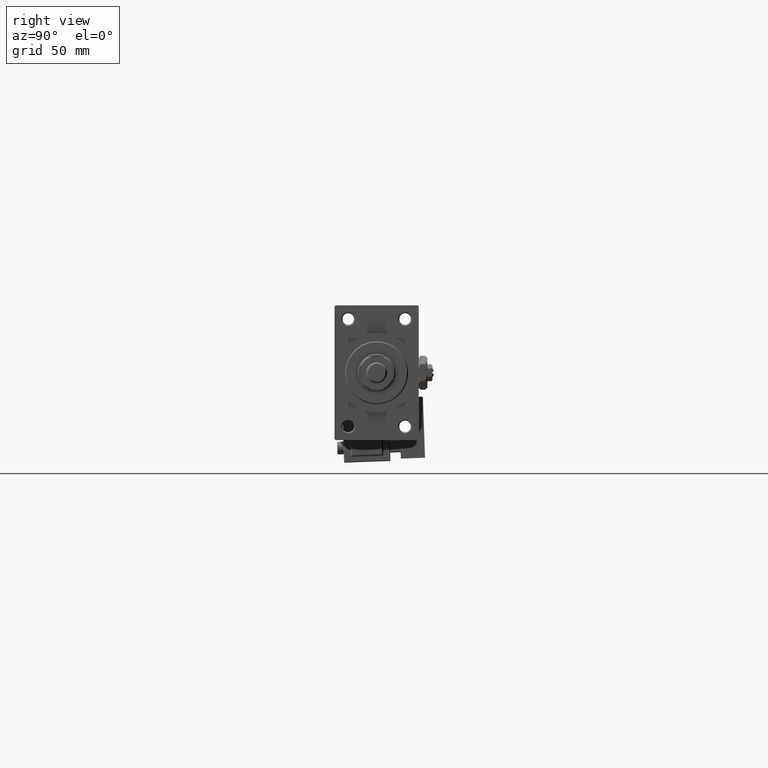
[diagram: clean part render]
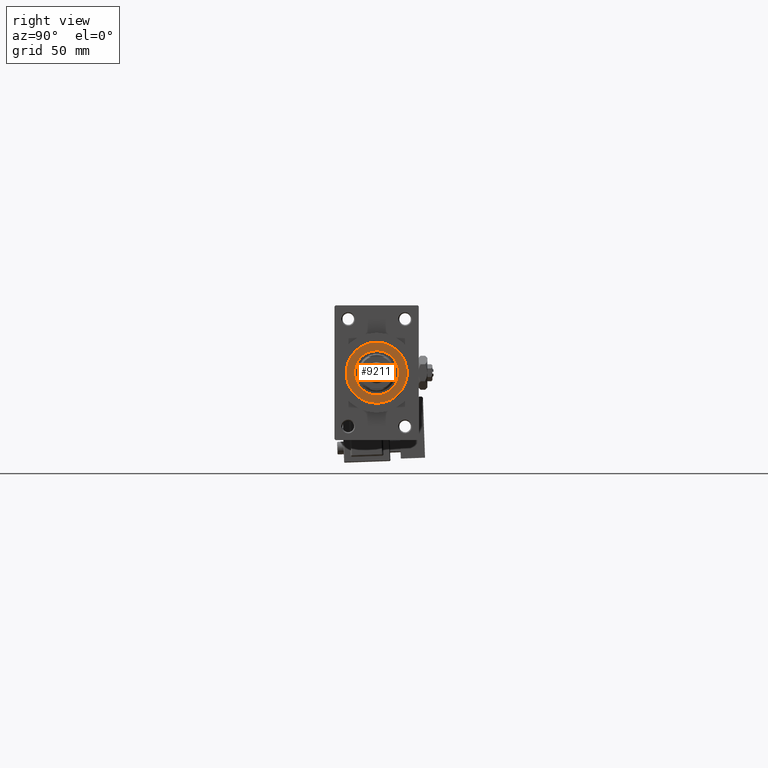
[diagram: same view with one face highlighted and labeled with its STEP entity id]
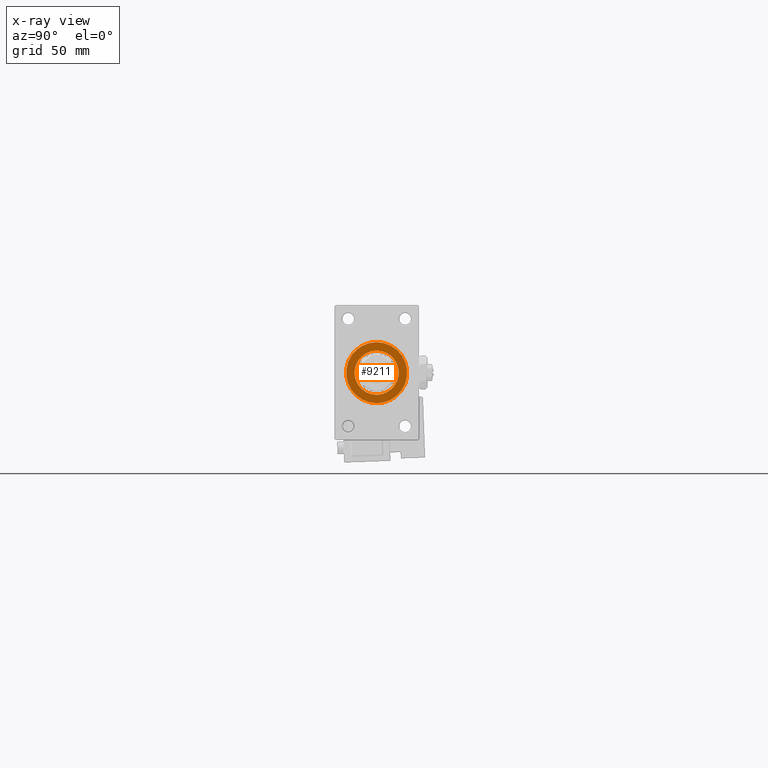
[diagram: x-ray of the same camera — body ghosted, the highlighted face saturated]
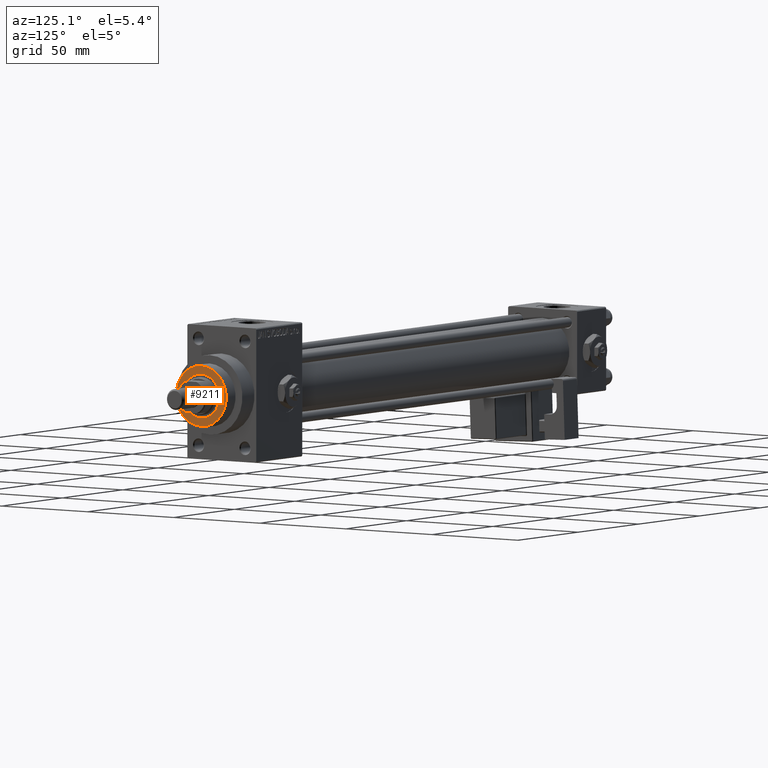
[diagram: same view with one face highlighted and labeled with its STEP entity id]
A machine part, right view. The second image highlights one B-rep face of the part: STEP entity #9211.
The next image is the same camera in x-ray: the body ghosted, the highlighted face saturated — about 0% of this face is hidden behind the body in this view.
A second angle (auxiliary view) of the same face is appended — the face is thin or edge-on in the first view.
In plain terms, the highlighted planar face has unit normal (1, -0, -0).
Its self-contained STEP definition (entity closure, byte-faithful):
#498 = VERTEX_POINT ( 'NONE', #8896 ) ;
#1960 = CIRCLE ( 'NONE', #29515, 10.50000000000000000 ) ;
#3686 = DIRECTION ( 'NONE',  ( 1.000000000000000000, 0.000000000000000000, 0.000000000000000000 ) ) ;
#4650 = EDGE_CURVE ( 'NONE', #28892, #22592, #31432, .T. ) ;
#5470 = AXIS2_PLACEMENT_3D ( 'NONE', #23812, #39807, #3686 ) ;
#7130 = EDGE_CURVE ( 'NONE', #22592, #28892, #42254, .T. ) ;
#7572 = EDGE_LOOP ( 'NONE', ( #33430, #36365 ) ) ;
#8896 = CARTESIAN_POINT ( 'NONE',  ( -10.50000000000000000, 1.285879139104720831E-15, 50.25999999999999801 ) ) ;
#9211 = ADVANCED_FACE ( 'NONE', ( #29364, #49252 ), #22013, .T. ) ;
#12961 = CARTESIAN_POINT ( 'NONE',  ( 0.000000000000000000, 0.000000000000000000, 50.25999999999999801 ) ) ;
#13283 = VERTEX_POINT ( 'NONE', #47733 ) ;
#14411 = CARTESIAN_POINT ( 'NONE',  ( 0.000000000000000000, 0.000000000000000000, 50.25999999999999801 ) ) ;
#15314 = DIRECTION ( 'NONE',  ( 0.000000000000000000, 0.000000000000000000, 1.000000000000000000 ) ) ;
#16397 = AXIS2_PLACEMENT_3D ( 'NONE', #14411, #33545, #30386 ) ;
#20549 = DIRECTION ( 'NONE',  ( 1.000000000000000000, 0.000000000000000000, 0.000000000000000000 ) ) ;
#22013 = PLANE ( 'NONE',  #16397 ) ;
#22592 = VERTEX_POINT ( 'NONE', #34519 ) ;
#22973 = DIRECTION ( 'NONE',  ( 1.000000000000000000, 0.000000000000000000, 0.000000000000000000 ) ) ;
#22976 = AXIS2_PLACEMENT_3D ( 'NONE', #47515, #15314, #43604 ) ;
#23812 = CARTESIAN_POINT ( 'NONE',  ( 0.000000000000000000, 0.000000000000000000, 50.25999999999999801 ) ) ;
#23984 = DIRECTION ( 'NONE',  ( 0.000000000000000000, 0.000000000000000000, 1.000000000000000000 ) ) ;
#24636 = CIRCLE ( 'NONE', #22976, 10.50000000000000000 ) ;
#28892 = VERTEX_POINT ( 'NONE', #40347 ) ;
#29364 = FACE_BOUND ( 'NONE', #7572, .T. ) ;
#29515 = AXIS2_PLACEMENT_3D ( 'NONE', #12961, #23984, #20549 ) ;
#30386 = DIRECTION ( 'NONE',  ( 1.000000000000000000, 0.000000000000000000, -0.000000000000000000 ) ) ;
#30647 = ORIENTED_EDGE ( 'NONE', *, *, #7130, .T. ) ;
#31432 = CIRCLE ( 'NONE', #47312, 14.49999999999999112 ) ;
#33430 = ORIENTED_EDGE ( 'NONE', *, *, #44996, .F. ) ;
#33545 = DIRECTION ( 'NONE',  ( 0.000000000000000000, 0.000000000000000000, 1.000000000000000000 ) ) ;
#34519 = CARTESIAN_POINT ( 'NONE',  ( -14.49999999999999112, 0.000000000000000000, 50.25999999999999801 ) ) ;
#35284 = CARTESIAN_POINT ( 'NONE',  ( 0.000000000000000000, 0.000000000000000000, 50.25999999999999801 ) ) ;
#36365 = ORIENTED_EDGE ( 'NONE', *, *, #40760, .F. ) ;
#39308 = ORIENTED_EDGE ( 'NONE', *, *, #4650, .T. ) ;
#39492 = DIRECTION ( 'NONE',  ( 0.000000000000000000, 0.000000000000000000, 1.000000000000000000 ) ) ;
#39807 = DIRECTION ( 'NONE',  ( 0.000000000000000000, 0.000000000000000000, 1.000000000000000000 ) ) ;
#40347 = CARTESIAN_POINT ( 'NONE',  ( 14.49999999999999112, 1.806354028742345013E-15, 50.25999999999999801 ) ) ;
#40760 = EDGE_CURVE ( 'NONE', #498, #13283, #1960, .T. ) ;
#42254 = CIRCLE ( 'NONE', #5470, 14.49999999999999112 ) ;
#42640 = EDGE_LOOP ( 'NONE', ( #30647, #39308 ) ) ;
#43604 = DIRECTION ( 'NONE',  ( 1.000000000000000000, 0.000000000000000000, 0.000000000000000000 ) ) ;
#44996 = EDGE_CURVE ( 'NONE', #13283, #498, #24636, .T. ) ;
#47312 = AXIS2_PLACEMENT_3D ( 'NONE', #35284, #39492, #22973 ) ;
#47515 = CARTESIAN_POINT ( 'NONE',  ( 0.000000000000000000, 0.000000000000000000, 50.25999999999999801 ) ) ;
#47733 = CARTESIAN_POINT ( 'NONE',  ( 10.50000000000000000, 0.000000000000000000, 50.25999999999999801 ) ) ;
#49252 = FACE_OUTER_BOUND ( 'NONE', #42640, .T. ) ;